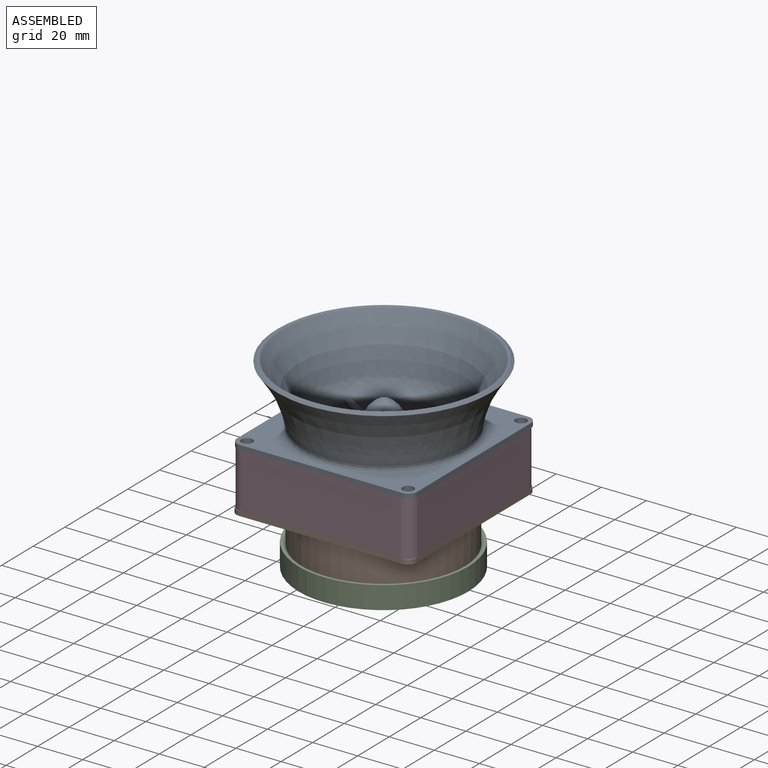
[diagram: assembled view]
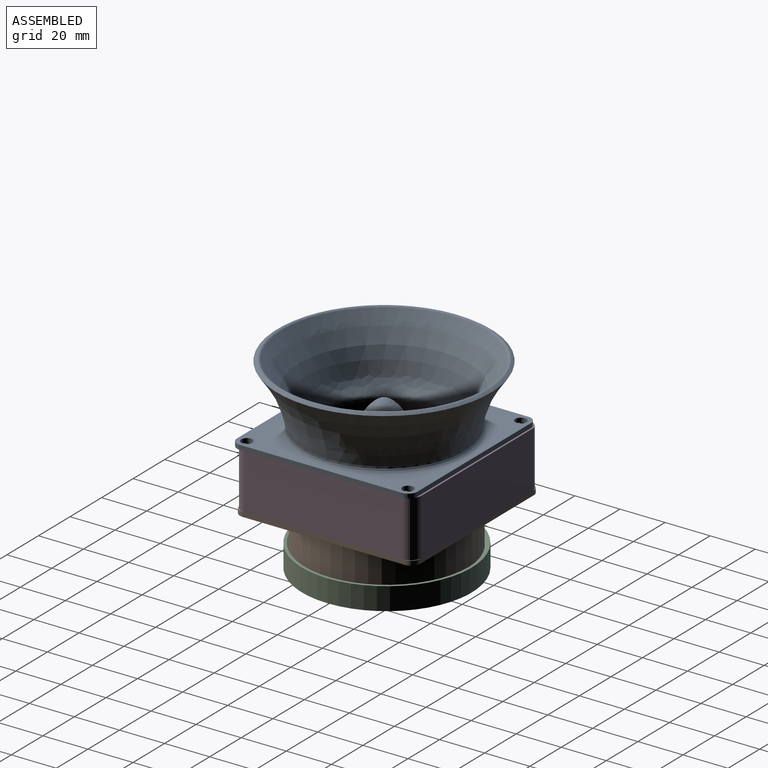
[diagram: assembled view, second angle]
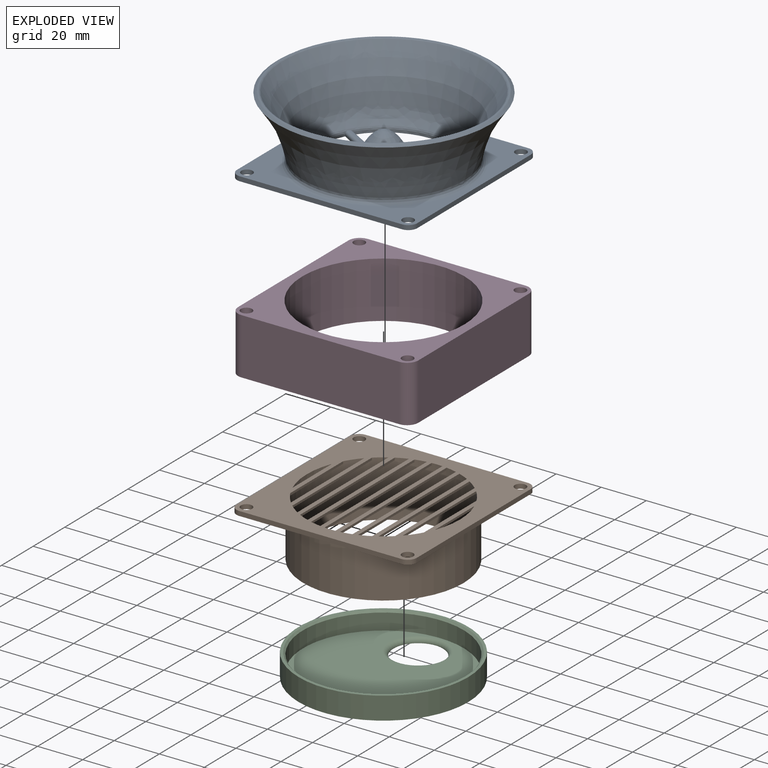
[diagram: exploded view]
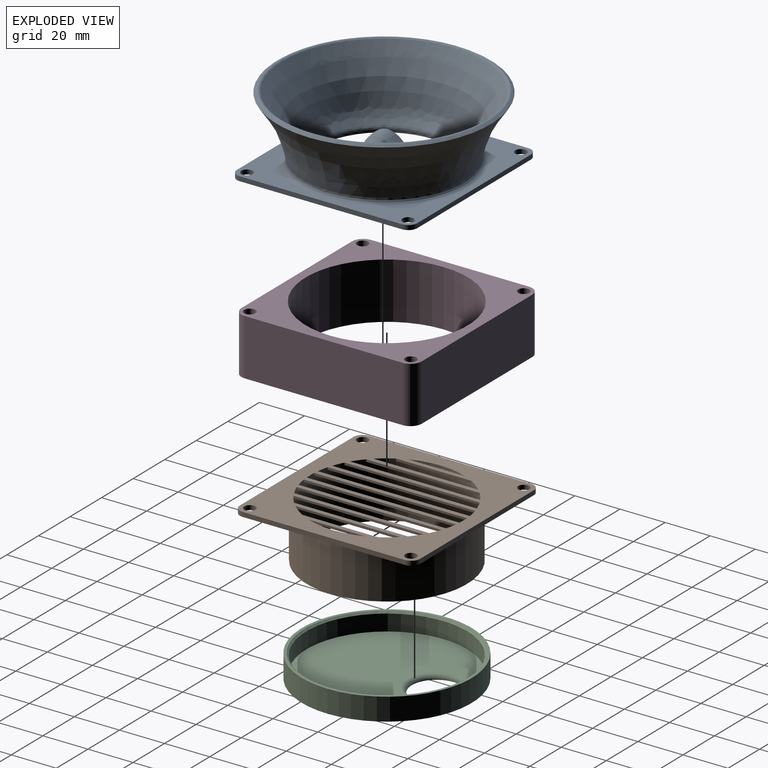
[diagram: exploded view, second angle]
ASSEMBLY  parts=4 mates=3
PART A: 40 faces, bbox 99.8x99.8x36.2 mm
  f0: plane 15.15x8.75mm, normal (0.5,-0.87,0), area 13.8mm2, adj f8,f10,f32,f35
  f1: plane 18.26x0.8mm, normal (0,0,1), area 14.6mm2, adj f21,f32,f33,f34
  f2: plane 16.21x9.82mm, normal (0,0,1), area 14.6mm2, adj f21,f32,f36,f38
  f3: plane 15.15x8.75mm, normal (-0.5,0.87,0), area 13.8mm2, adj f10,f14,f32,f37
  f4: plane 15.15x8.75mm, normal (0.5,0.87,0), area 13.8mm2, adj f10,f14,f32,f38
  f5: plane 15.15x8.75mm, normal (-0.5,-0.87,0), area 13.8mm2, adj f9,f10,f32,f36
  f6: plane 17.49x0.81mm, normal (1,0,0), area 13.8mm2, adj f8,f10,f32,f33
  f7: plane 17.49x0.81mm, normal (-1,0,0), area 13.8mm2, adj f9,f10,f32,f34
  f8: cylinder r=30mm len=43.62mm, axis (0,0,-1), area 71.5mm2, adj f0,f6,f10,f21,f33,f35
  f9: cylinder r=30mm len=43.61mm, axis (0,0,-1), area 71.5mm2, adj f5,f7,f10,f21,f34,f36
  f10: plane 80x80mm, normal (0,0,-1), area 4174.6mm2, adj f0,f3,f4,f5,f6,f7,f8,f9
  f11: plane 72x2mm, normal (0,-1,0), area 144mm2, adj f10,f16,f26,f29
  f12: plane 72x2mm, normal (1,0,0), area 144mm2, adj f10,f16,f26,f27
  f13: plane 72x2mm, normal (0,1,0), area 144mm2, adj f10,f16,f27,f28
  f14: cylinder r=30mm len=50.36mm, axis (0,0,-1), area 71.5mm2, adj f3,f4,f10,f21,f37,f38
  f15: plane 72x2mm, normal (-1,0,0), area 144mm2, adj f10,f16,f28,f29
  f16: plane 80x80mm, normal (0,0,1), area 1812.6mm2, adj f11,f12,f13,f15,f22,f23,f24,f25
  f17: bspline ~95x95mm, area 412.7mm2, adj f18,f39
  f18: bspline ~95x95mm, area 7250mm2, adj f17,f30
  f19: offset ~99.8x99.8mm, area 5981.5mm2, adj f20,f39
  f20: bspline ~68.71x68.68mm, area 1517.3mm2, adj f19,f21
  f21: bspline ~61.07x61.06mm, area 262.8mm2, adj f1,f2,f8,f9,f14,f20,f31,f33
  f22: cylinder r=2.5mm len=5mm, axis (0,0,-1), area 31.4mm2, adj f10,f16
  f23: cylinder r=2.5mm len=5mm, axis (0,0,-1), area 31.4mm2, adj f10,f16
  f24: cylinder r=2.5mm len=5mm, axis (0,0,-1), area 31.4mm2, adj f10,f16
  f25: cylinder r=2.5mm len=5mm, axis (0,0,-1), area 31.4mm2, adj f10,f16
  f26: cylinder r=4mm len=4mm, axis (0,0,1), area 12.6mm2, adj f10,f11,f12,f16
  f27: cylinder r=4mm len=4mm, axis (0,0,-1), area 12.6mm2, adj f10,f12,f13,f16
  f28: cylinder r=4mm len=4mm, axis (0,0,1), area 12.6mm2, adj f10,f13,f15,f16
  f29: cylinder r=4mm len=4mm, axis (0,0,-1), area 12.6mm2, adj f10,f11,f15,f16
  f30: bspline ~75.69x75.66mm, area 813.8mm2, adj f16,f18
  f31: plane 16.21x9.82mm, normal (0,0,1), area 14.6mm2, adj f21,f32,f35,f37
  f32: revolved ~26x26mm, area 936.9mm2, adj f0,f1,f2,f3,f4,f5,f6,f7
  f33: cylinder r=1.2mm len=18.25mm, axis (0,1,0), area 33.6mm2, adj f1,f6,f8,f21,f32
  f34: cylinder r=1.2mm len=18.25mm, axis (0,-1,0), area 33.6mm2, adj f1,f7,f9,f21,f32
  f35: cylinder r=1.2mm len=16.41mm, axis (0.87,0.5,0), area 33.6mm2, adj f0,f8,f21,f31,f32
  f36: cylinder r=1.2mm len=16.41mm, axis (0.87,-0.5,0), area 33.6mm2, adj f2,f5,f9,f21,f32
  f37: cylinder r=1.2mm len=16.41mm, axis (-0.87,-0.5,0), area 33.6mm2, adj f3,f14,f21,f31,f32
  f38: cylinder r=1.2mm len=16.41mm, axis (-0.87,0.5,0), area 33.6mm2, adj f2,f4,f14,f21,f32
  f39: bspline ~92.76x92.72mm, area 450.6mm2, adj f17,f19
PART B: 47 faces, bbox 80x80x25 mm
  f0: plane 80x80mm, normal (0,0,1), area 2326.2mm2, adj f1,f2,f3,f5,f7,f8,f9,f10
  f1: plane 72x2mm, normal (0,-1,0), area 144mm2, adj f0,f6,f11,f14
  f2: plane 72x2mm, normal (1,0,0), area 144mm2, adj f0,f6,f11,f12
  f3: plane 72x2mm, normal (0,1,0), area 144mm2, adj f0,f6,f12,f13
  f4: cylinder r=34mm len=68mm, axis (0,0,-1), area 5285.3mm2, adj f6,f16,f17,f18,f19,f20,f21,f22
  f5: plane 72x2mm, normal (-1,0,0), area 144mm2, adj f0,f6,f13,f14
  f6: plane 80x80mm, normal (0,0,-1), area 3753.8mm2, adj f1,f2,f3,f4,f5,f7,f8,f9
  f7: cylinder r=2.5mm len=5mm, axis (0,0,-1), area 31.4mm2, adj f0,f6
  f8: cylinder r=2.5mm len=5mm, axis (0,0,-1), area 31.4mm2, adj f0,f6
  f9: cylinder r=2.5mm len=5mm, axis (0,0,-1), area 31.4mm2, adj f0,f6
  f10: cylinder r=2.5mm len=5mm, axis (0,0,-1), area 31.4mm2, adj f0,f6
  f11: cylinder r=4mm len=4mm, axis (0,0,1), area 12.6mm2, adj f0,f1,f2,f6
  f12: cylinder r=4mm len=4mm, axis (0,0,-1), area 12.6mm2, adj f0,f2,f3,f6
  f13: cylinder r=4mm len=4mm, axis (0,0,1), area 12.6mm2, adj f0,f3,f5,f6
  f14: cylinder r=4mm len=4mm, axis (0,0,-1), area 12.6mm2, adj f0,f1,f5,f6
  f15: cylinder r=35.6mm len=71.2mm, axis (0,0,-1), area 5144.7mm2, adj f0,f16
  f16: plane 71.2x71.2mm, normal (0,0,1), area 349.8mm2, adj f4,f15
  f17: plane 33.46x1mm, normal (-1,0,0), area 33.5mm2, adj f4,f6,f19
  f18: plane 25.1x1mm, normal (1,0,0), area 25.1mm2, adj f4,f6,f19
  f19: plane 33.46x2mm, normal (0,0,1), area 59mm2, adj f4,f17,f18
  f20: plane 50.44x1mm, normal (-1,0,0), area 50.4mm2, adj f4,f6,f22
  f21: plane 46.52x1mm, normal (1,0,0), area 46.5mm2, adj f4,f6,f22
  f22: plane 50.44x2mm, normal (0,0,1), area 97.1mm2, adj f4,f20,f21
  f23: plane 60x1mm, normal (-1,0,0), area 60mm2, adj f4,f6,f25
  f24: plane 57.69x1mm, normal (1,0,0), area 57.7mm2, adj f4,f6,f25
  f25: plane 60x2mm, normal (0,0,1), area 117.7mm2, adj f4,f23,f24
  f26: plane 65.46x1mm, normal (-1,0,0), area 65.5mm2, adj f4,f6,f28
  f27: plane 64.2x1mm, normal (1,0,0), area 64.2mm2, adj f4,f6,f28
  f28: plane 65.46x2mm, normal (0,0,1), area 129.7mm2, adj f4,f26,f27
  f29: plane 67.83x1mm, normal (-1,0,0), area 67.8mm2, adj f4,f6,f31
  f30: plane 67.43x1mm, normal (1,0,0), area 67.4mm2, adj f4,f6,f31
  f31: plane 67.83x2mm, normal (0,0,1), area 135.3mm2, adj f4,f29,f30
  f32: plane 67.43x1mm, normal (-1,0,0), area 67.4mm2, adj f4,f6,f34
  f33: plane 67.83x1mm, normal (1,0,0), area 67.8mm2, adj f4,f6,f34
  f34: plane 67.83x2mm, normal (0,0,1), area 135.3mm2, adj f4,f32,f33
  f35: plane 64.2x1mm, normal (-1,0,0), area 64.2mm2, adj f4,f6,f37
  f36: plane 65.46x1mm, normal (1,0,0), area 65.5mm2, adj f4,f6,f37
  f37: plane 65.46x2mm, normal (0,0,1), area 129.7mm2, adj f4,f35,f36
  f38: plane 57.69x1mm, normal (-1,0,0), area 57.7mm2, adj f4,f6,f40
  f39: plane 60x1mm, normal (1,0,0), area 60mm2, adj f4,f6,f40
  f40: plane 60x2mm, normal (0,0,1), area 117.7mm2, adj f4,f38,f39
  f41: plane 46.52x1mm, normal (-1,0,0), area 46.5mm2, adj f4,f6,f43
  f42: plane 50.44x1mm, normal (1,0,0), area 50.4mm2, adj f4,f6,f43
  f43: plane 50.44x2mm, normal (0,0,1), area 97.1mm2, adj f4,f41,f42
  f44: plane 25.1x1mm, normal (-1,0,0), area 25.1mm2, adj f4,f6,f46
  f45: plane 33.46x1mm, normal (1,0,0), area 33.5mm2, adj f4,f6,f46
  f46: plane 33.46x2mm, normal (0,0,1), area 59mm2, adj f4,f44,f45
PART C: 7 faces, bbox 75.3x75.3x11.4 mm
  f0: plane 71.3x71.3mm, normal (0,0,1), area 3461.8mm2, adj f2,f5
  f1: plane 75.3x75.3mm, normal (0,0,-1), area 4073.1mm2, adj f3,f5
  f2: cylinder r=35.65mm len=71.3mm, axis (0,0,-1), area 1612.8mm2, adj f0,f6
  f3: cylinder r=37.65mm len=75.3mm, axis (0,0,-1), area 2365.6mm2, adj f1,f4
  f4: plane 75.3x75.3mm, normal (0,0,1), area 279.4mm2, adj f3,f6
  f5: torus R=13mm, axis (0,0,1), area 231.5mm2, adj f0,f1
  f6: cone r=35.65mm half-angle=45deg, axis (0,0,1), area 256.3mm2, adj f2,f4
PART D: 15 faces, bbox 80x80x25 mm
  f0: plane 70x25mm, normal (0,-1,0), area 1750mm2, adj f5,f6,f11,f14
  f1: plane 70x25mm, normal (1,0,0), area 1750mm2, adj f5,f6,f11,f12
  f2: plane 70x25mm, normal (0,1,0), area 1750mm2, adj f5,f6,f12,f13
  f3: cylinder r=36mm len=72mm, axis (0,0,-1), area 5654.9mm2, adj f5,f6
  f4: plane 70x25mm, normal (-1,0,0), area 1750mm2, adj f5,f6,f13,f14
  f5: plane 80x80mm, normal (0,0,1), area 2228.5mm2, adj f0,f1,f2,f3,f4,f7,f8,f9
  f6: plane 80x80mm, normal (0,0,-1), area 2228.5mm2, adj f0,f1,f2,f3,f4,f7,f8,f9
  f7: cylinder r=2.5mm len=25mm, axis (0,0,-1), area 392.7mm2, adj f5,f6
  f8: cylinder r=2.5mm len=25mm, axis (0,0,-1), area 392.7mm2, adj f5,f6
  f9: cylinder r=2.5mm len=25mm, axis (0,0,-1), area 392.7mm2, adj f5,f6
  f10: cylinder r=2.5mm len=25mm, axis (0,0,-1), area 392.7mm2, adj f5,f6
  f11: cylinder r=5mm len=25mm, axis (0,0,1), area 196.3mm2, adj f0,f1,f5,f6
  f12: cylinder r=5mm len=25mm, axis (0,0,-1), area 196.3mm2, adj f1,f2,f5,f6
  f13: cylinder r=5mm len=25mm, axis (0,0,1), area 196.3mm2, adj f2,f4,f5,f6
  f14: cylinder r=5mm len=25mm, axis (0,0,-1), area 196.3mm2, adj f0,f4,f5,f6
PLACE A t=(32.43,16.06,48.47)mm
PLACE B rot(axis=(1,0,0),180deg) t=(31.68,16.81,23.47)mm fixed
PLACE C t=(31.68,16.81,-4.43)mm
PLACE D t=(31.68,16.81,23.47)mm
MATE slider B.f4 <-> C.f2  axis (0,0,1) through (31.68,16.81,-1.53)mm
MATE fastened A.f22 <-> D.f13  axis (0,0,-1) through (-3.32,51.81,48.47)mm
MATE fastened B.f8 <-> D.f7  axis (0,0,1) through (-4.07,52.56,23.47)mm
